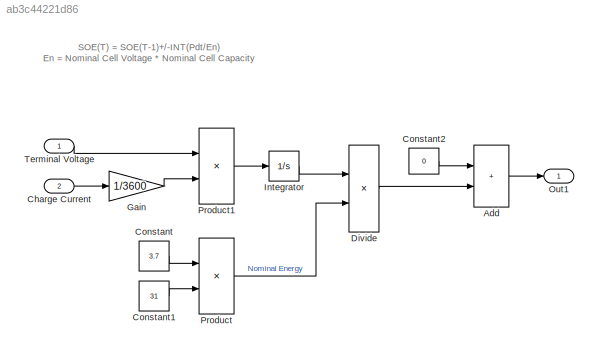
MODEL slx_ab3c44221d86
KIND model
CONFIG AbsTol = auto
CONFIG EnableMultiTasking = off
CONFIG FixedStep = auto
CONFIG MaxStep = auto
CONFIG MinStep = auto
CONFIG RelTol = 1e-3
CONFIG SampleTimeConstraint = Unconstrained
CONFIG SolverName = VariableStepAuto
CONFIG StartTime = 0.0
CONFIG StopTime = 10.0
BLOCK [Sum] Add
  IconShape = rectangular
  Ports = [2, 1]
BLOCK [Inport] Charge Current
  Port = 2
BLOCK [Constant] Constant
  Value = 3.7
BLOCK [Constant] Constant1
  Value = 31
BLOCK [Constant] Constant2
  Value = 0
BLOCK [Product] Divide
  Inputs = */
  Ports = [2, 1]
BLOCK [Gain] Gain
  Gain = 1/3600
BLOCK [Integrator] Integrator
  Ports = [1, 1]
BLOCK [Outport] Out1
BLOCK [Product] Product
  Ports = [2, 1]
BLOCK [Product] Product1
  Ports = [2, 1]
BLOCK [Inport] Terminal Voltage
ANNOTATION (root): SOE(T) = SOE(T-1)+/-INT(Pdt/En) En = Nominal Cell Voltage * Nominal Cell Capacity
LINE Add:1 -> Out1:1
LINE Charge Current:1 -> Gain:1
LINE Constant1:1 -> Product:2
LINE Constant2:1 -> Add:1
LINE Constant:1 -> Product:1
LINE Divide:1 -> Add:2
LINE Gain:1 -> Product1:2
LINE Integrator:1 -> Divide:1
LINE Product1:1 -> Integrator:1
LINE Product:1 -> Divide:2
LINE Terminal Voltage:1 -> Product1:1
